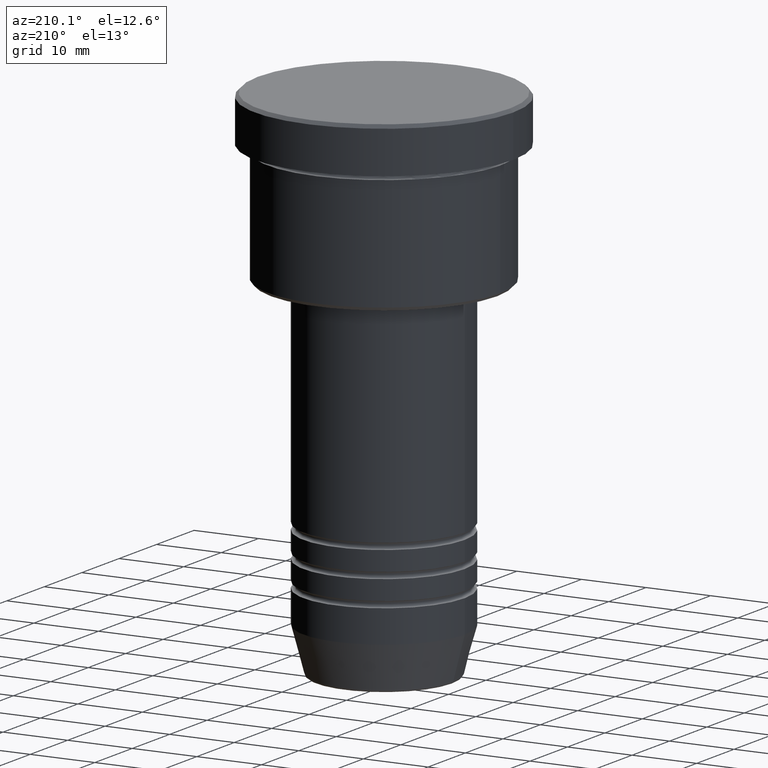
[diagram: clean part render]
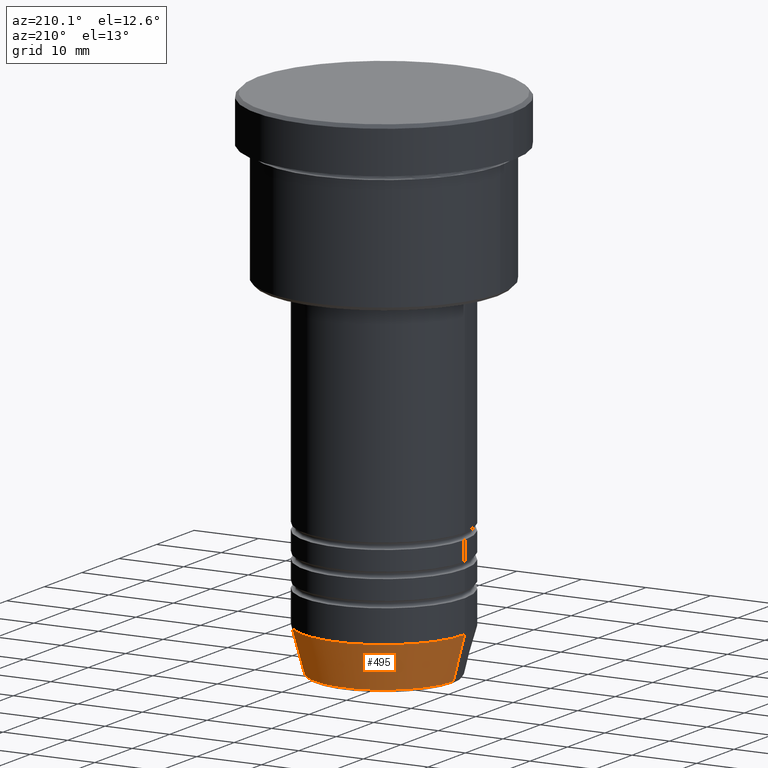
[diagram: same view with one face highlighted and labeled with its STEP entity id]
A machine part, auxiliary view. The second image highlights one B-rep face of the part: STEP entity #495.
In plain terms, the highlighted conical surface has half-angle 15 deg.
Its self-contained STEP definition (entity closure, byte-faithful):
#63 = CARTESIAN_POINT ( 'NONE',  ( 0.000000000000000000, 0.000000000000000000, -73.00000000000001421 ) ) ;
#79 = EDGE_CURVE ( 'NONE', #868, #308, #491, .T. ) ;
#92 = ORIENTED_EDGE ( 'NONE', *, *, #79, .F. ) ;
#108 = ORIENTED_EDGE ( 'NONE', *, *, #627, .F. ) ;
#115 = DIRECTION ( 'NONE',  ( -0.2588190451025213501, 3.169619151431772337E-17, 0.9659258262890680902 ) ) ;
#163 = EDGE_CURVE ( 'NONE', #868, #1091, #652, .T. ) ;
#188 = FACE_OUTER_BOUND ( 'NONE', #672, .T. ) ;
#197 = ORIENTED_EDGE ( 'NONE', *, *, #561, .T. ) ;
#243 = CARTESIAN_POINT ( 'NONE',  ( 12.50000000000000000, 0.000000000000000000, -73.00000000000001421 ) ) ;
#299 = CARTESIAN_POINT ( 'NONE',  ( 0.000000000000000000, 0.000000000000000000, -73.00000000000001421 ) ) ;
#308 = VERTEX_POINT ( 'NONE', #243 ) ;
#316 = VECTOR ( 'NONE', #115, 1000.000000000000000 ) ;
#353 = CONICAL_SURFACE ( 'NONE', #1027, 12.50000000000000000, 0.2617993877991500740 ) ;
#392 = CARTESIAN_POINT ( 'NONE',  ( 0.000000000000000000, 0.000000000000000000, -79.62940952255127058 ) ) ;
#434 = DIRECTION ( 'NONE',  ( -0.000000000000000000, -0.000000000000000000, 1.000000000000000000 ) ) ;
#491 = LINE ( 'NONE', #584, #896 ) ;
#495 = ADVANCED_FACE ( 'NONE', ( #188 ), #353, .T. ) ;
#512 = CARTESIAN_POINT ( 'NONE',  ( -10.72365507213718772, 1.422038742429750121E-15, -79.62940952255127058 ) ) ;
#521 = DIRECTION ( 'NONE',  ( 1.000000000000000000, 0.000000000000000000, 0.000000000000000000 ) ) ;
#561 = EDGE_CURVE ( 'NONE', #1091, #1108, #646, .T. ) ;
#584 = CARTESIAN_POINT ( 'NONE',  ( 12.50000000000000000, 0.000000000000000000, -73.00000000000001421 ) ) ;
#599 = AXIS2_PLACEMENT_3D ( 'NONE', #63, #434, #804 ) ;
#627 = EDGE_CURVE ( 'NONE', #308, #1108, #770, .T. ) ;
#646 = LINE ( 'NONE', #934, #316 ) ;
#652 = CIRCLE ( 'NONE', #1046, 10.72365507213718772 ) ;
#665 = DIRECTION ( 'NONE',  ( -0.000000000000000000, -0.000000000000000000, 1.000000000000000000 ) ) ;
#672 = EDGE_LOOP ( 'NONE', ( #792, #197, #108, #92 ) ) ;
#701 = CARTESIAN_POINT ( 'NONE',  ( -12.50000000000000000, 1.530808498934191521E-15, -73.00000000000001421 ) ) ;
#753 = DIRECTION ( 'NONE',  ( -0.000000000000000000, -0.000000000000000000, 1.000000000000000000 ) ) ;
#770 = CIRCLE ( 'NONE', #599, 12.50000000000000000 ) ;
#777 = DIRECTION ( 'NONE',  ( 1.000000000000000000, 0.000000000000000000, 0.000000000000000000 ) ) ;
#792 = ORIENTED_EDGE ( 'NONE', *, *, #163, .T. ) ;
#804 = DIRECTION ( 'NONE',  ( 1.000000000000000000, 0.000000000000000000, 0.000000000000000000 ) ) ;
#868 = VERTEX_POINT ( 'NONE', #1099 ) ;
#896 = VECTOR ( 'NONE', #1107, 1000.000000000000000 ) ;
#934 = CARTESIAN_POINT ( 'NONE',  ( -12.50000000000000000, 1.530808498934191521E-15, -73.00000000000001421 ) ) ;
#1027 = AXIS2_PLACEMENT_3D ( 'NONE', #299, #665, #777 ) ;
#1046 = AXIS2_PLACEMENT_3D ( 'NONE', #392, #753, #521 ) ;
#1091 = VERTEX_POINT ( 'NONE', #512 ) ;
#1099 = CARTESIAN_POINT ( 'NONE',  ( 10.72365507213718772, 0.000000000000000000, -79.62940952255127058 ) ) ;
#1107 = DIRECTION ( 'NONE',  ( 0.2588190451025213501, 0.000000000000000000, 0.9659258262890680902 ) ) ;
#1108 = VERTEX_POINT ( 'NONE', #701 ) ;